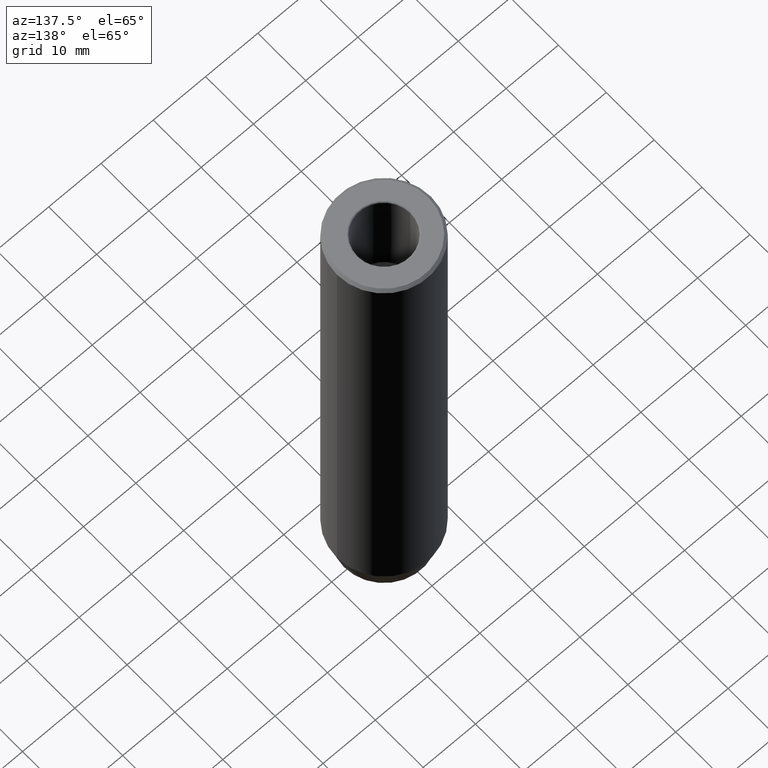
[diagram: clean part render]
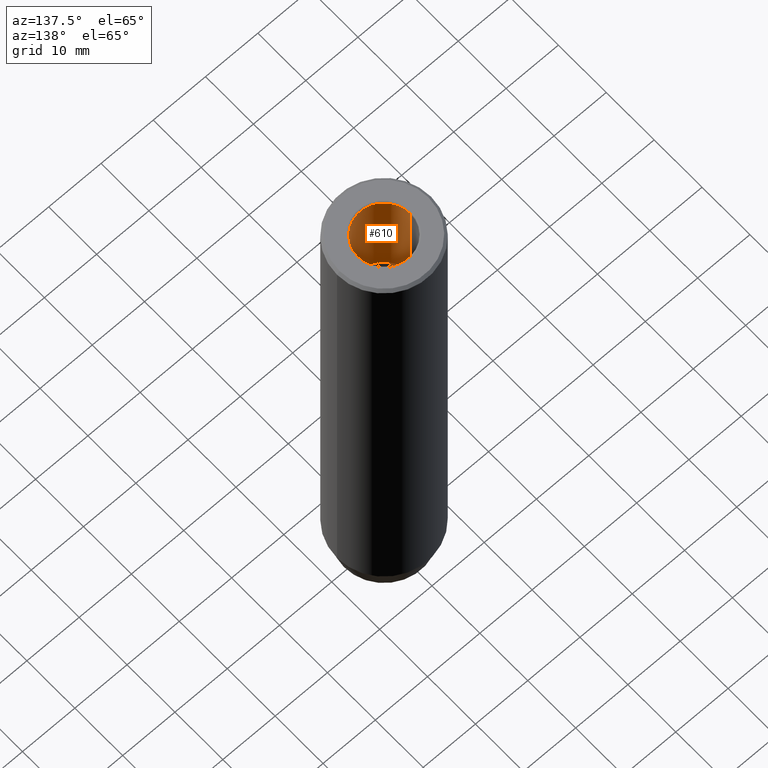
[diagram: same view with one face highlighted and labeled with its STEP entity id]
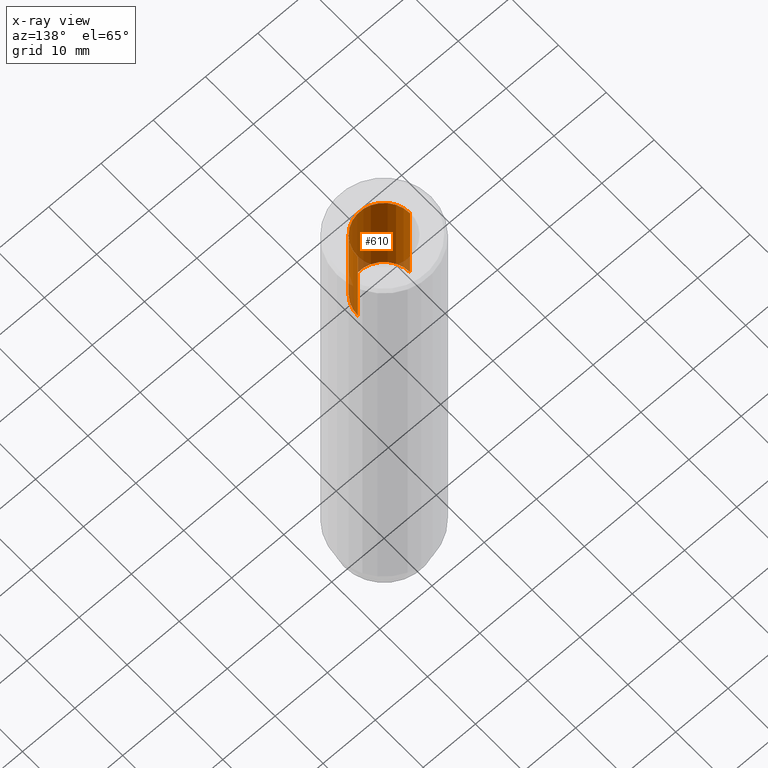
[diagram: x-ray of the same camera — body ghosted, the highlighted face saturated]
A machine part, auxiliary view. The second image highlights one B-rep face of the part: STEP entity #610.
The next image is the same camera in x-ray: the body ghosted, the highlighted face saturated — about 8% of this face is hidden behind the body in this view.
In plain terms, the highlighted cylindrical surface (edge-blend (fillet) strip) has radius 5 mm, axis along (-0, -0, 1).
Its self-contained STEP definition (entity closure, byte-faithful):
#7 = DIRECTION ( 'NONE',  ( -0.000000000000000000, -0.000000000000000000, 1.000000000000000000 ) ) ;
#20 = CARTESIAN_POINT ( 'NONE',  ( -4.999999999999997335, 6.123233995736763324E-16, -0.2999999999999999889 ) ) ;
#27 = EDGE_CURVE ( 'NONE', #432, #283, #380, .T. ) ;
#72 = VERTEX_POINT ( 'NONE', #381 ) ;
#92 = EDGE_LOOP ( 'NONE', ( #447, #461, #233, #577 ) ) ;
#109 = EDGE_CURVE ( 'NONE', #631, #283, #453, .T. ) ;
#110 = DIRECTION ( 'NONE',  ( -0.000000000000000000, -0.000000000000000000, 1.000000000000000000 ) ) ;
#164 = LINE ( 'NONE', #215, #351 ) ;
#188 = DIRECTION ( 'NONE',  ( 1.000000000000000000, 0.000000000000000000, 0.000000000000000000 ) ) ;
#201 = CARTESIAN_POINT ( 'NONE',  ( 0.000000000000000000, 0.000000000000000000, -20.00000000000000000 ) ) ;
#212 = DIRECTION ( 'NONE',  ( 1.000000000000000000, 0.000000000000000000, 0.000000000000000000 ) ) ;
#215 = CARTESIAN_POINT ( 'NONE',  ( -4.999999999999997335, 6.123233995736763324E-16, 0.000000000000000000 ) ) ;
#222 = FACE_OUTER_BOUND ( 'NONE', #92, .T. ) ;
#233 = ORIENTED_EDGE ( 'NONE', *, *, #27, .T. ) ;
#235 = EDGE_CURVE ( 'NONE', #72, #631, #597, .T. ) ;
#245 = CARTESIAN_POINT ( 'NONE',  ( 4.999999999999997335, 0.000000000000000000, -0.2999999999999999889 ) ) ;
#264 = DIRECTION ( 'NONE',  ( -0.000000000000000000, -0.000000000000000000, 1.000000000000000000 ) ) ;
#273 = CARTESIAN_POINT ( 'NONE',  ( 4.999999999999997335, 0.000000000000000000, 0.000000000000000000 ) ) ;
#283 = VERTEX_POINT ( 'NONE', #245 ) ;
#311 = AXIS2_PLACEMENT_3D ( 'NONE', #427, #7, #188 ) ;
#324 = DIRECTION ( 'NONE',  ( -0.000000000000000000, -0.000000000000000000, 1.000000000000000000 ) ) ;
#339 = VECTOR ( 'NONE', #324, 1000.000000000000000 ) ;
#351 = VECTOR ( 'NONE', #264, 1000.000000000000000 ) ;
#357 = CYLINDRICAL_SURFACE ( 'NONE', #615, 4.999999999999997335 ) ;
#380 = CIRCLE ( 'NONE', #311, 4.999999999999997335 ) ;
#381 = CARTESIAN_POINT ( 'NONE',  ( -4.999999999999995559, 6.123233995736761352E-16, -20.00000000000000000 ) ) ;
#389 = DIRECTION ( 'NONE',  ( 1.000000000000000000, 0.000000000000000000, 0.000000000000000000 ) ) ;
#427 = CARTESIAN_POINT ( 'NONE',  ( 0.000000000000000000, 0.000000000000000000, -0.2999999999999999889 ) ) ;
#430 = EDGE_CURVE ( 'NONE', #72, #432, #164, .T. ) ;
#432 = VERTEX_POINT ( 'NONE', #20 ) ;
#444 = AXIS2_PLACEMENT_3D ( 'NONE', #201, #487, #389 ) ;
#447 = ORIENTED_EDGE ( 'NONE', *, *, #235, .F. ) ;
#449 = CARTESIAN_POINT ( 'NONE',  ( 0.000000000000000000, 0.000000000000000000, 0.000000000000000000 ) ) ;
#453 = LINE ( 'NONE', #273, #339 ) ;
#461 = ORIENTED_EDGE ( 'NONE', *, *, #430, .T. ) ;
#487 = DIRECTION ( 'NONE',  ( -0.000000000000000000, -0.000000000000000000, 1.000000000000000000 ) ) ;
#577 = ORIENTED_EDGE ( 'NONE', *, *, #109, .F. ) ;
#597 = CIRCLE ( 'NONE', #444, 4.999999999999995559 ) ;
#610 = ADVANCED_FACE ( 'NONE', ( #222 ), #357, .F. ) ;
#612 = CARTESIAN_POINT ( 'NONE',  ( 4.999999999999995559, 0.000000000000000000, -20.00000000000000000 ) ) ;
#615 = AXIS2_PLACEMENT_3D ( 'NONE', #449, #110, #212 ) ;
#631 = VERTEX_POINT ( 'NONE', #612 ) ;